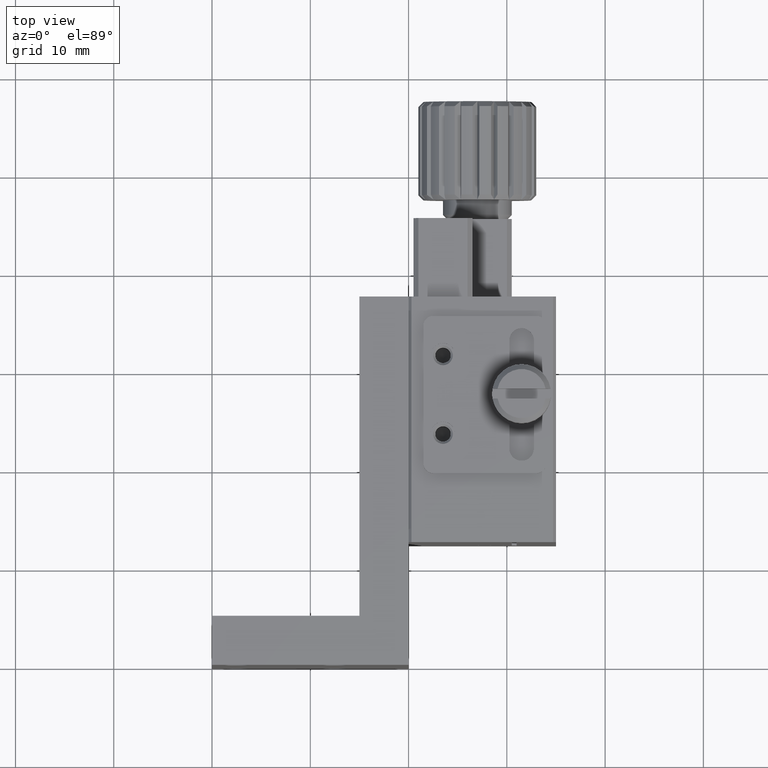
[diagram: clean part render]
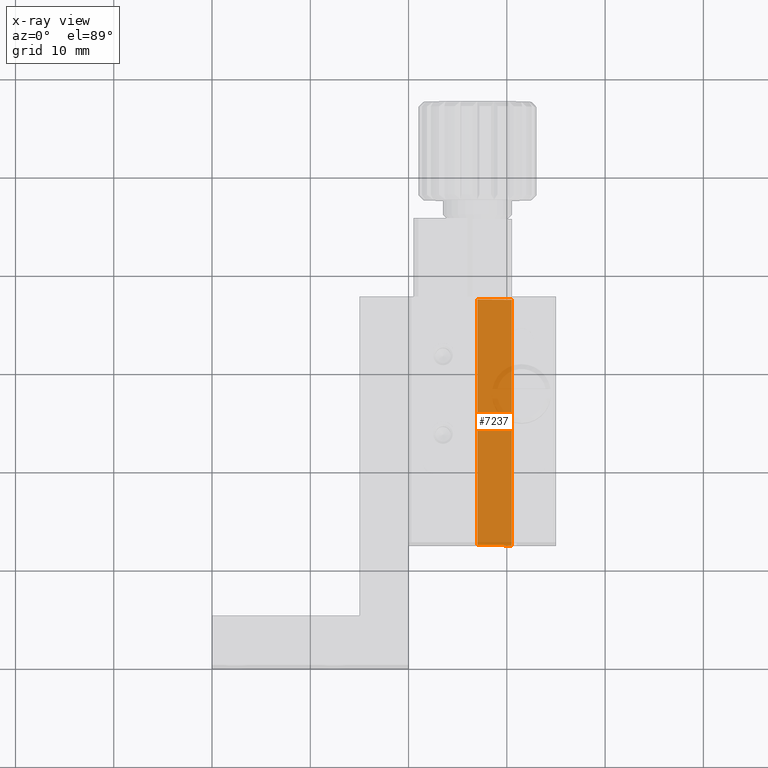
[diagram: x-ray — body ghosted, one internal face saturated and labeled with its STEP entity id]
A machine part, top view, then the same camera in x-ray: the body is ghosted and one INTERNAL B-rep face — a face not visible from any outside direction — is saturated and labeled: STEP entity #7237.
In plain terms, the highlighted planar face has unit normal (0.5001, 0, 0.866).
Its self-contained STEP definition (entity closure, byte-faithful):
#200 = EDGE_CURVE ( 'NONE', #3642, #5220, #1398, .T. ) ;
#208 = LINE ( 'NONE', #4308, #532 ) ;
#306 = VECTOR ( 'NONE', #6802, 999.9999999999998863 ) ;
#314 = FACE_OUTER_BOUND ( 'NONE', #4123, .T. ) ;
#473 = CARTESIAN_POINT ( 'NONE',  ( 10.49999999999999645, 37.50000000000000000, -20.02100000000000080 ) ) ;
#483 = DIRECTION ( 'NONE',  ( -0.8659960399471563486, 0.000000000000000000, 0.5000508562094891918 ) ) ;
#532 = VECTOR ( 'NONE', #5656, 1000.000000000000000 ) ;
#787 = VECTOR ( 'NONE', #6407, 1000.000000000000000 ) ;
#1095 = CARTESIAN_POINT ( 'NONE',  ( 6.999999999999998224, 12.49999999999999645, -18.00000000000000000 ) ) ;
#1101 = LINE ( 'NONE', #4458, #6319 ) ;
#1135 = PLANE ( 'NONE',  #4313 ) ;
#1274 = CARTESIAN_POINT ( 'NONE',  ( 6.999999999999998224, 37.50000000000000000, -18.00000000000000000 ) ) ;
#1398 = LINE ( 'NONE', #1439, #306 ) ;
#1439 = CARTESIAN_POINT ( 'NONE',  ( 6.999999999999998224, 12.49999999999999645, -18.00000000000000000 ) ) ;
#1760 = ORIENTED_EDGE ( 'NONE', *, *, #2074, .F. ) ;
#2074 = EDGE_CURVE ( 'NONE', #8552, #2153, #1101, .T. ) ;
#2153 = VERTEX_POINT ( 'NONE', #1274 ) ;
#2354 = CARTESIAN_POINT ( 'NONE',  ( 10.49999999999999645, 12.49999999999999645, -20.02100000000000080 ) ) ;
#2441 = LINE ( 'NONE', #6358, #787 ) ;
#3424 = ORIENTED_EDGE ( 'NONE', *, *, #5553, .T. ) ;
#3456 = VECTOR ( 'NONE', #8341, 1000.000000000000000 ) ;
#3503 = ORIENTED_EDGE ( 'NONE', *, *, #6236, .F. ) ;
#3638 = VERTEX_POINT ( 'NONE', #473 ) ;
#3642 = VERTEX_POINT ( 'NONE', #5717 ) ;
#3651 = CARTESIAN_POINT ( 'NONE',  ( 7.865907966353279157, 37.50000000000000000, -18.49999999999999645 ) ) ;
#4123 = EDGE_LOOP ( 'NONE', ( #3503, #4759, #5230, #3424, #1760 ) ) ;
#4308 = CARTESIAN_POINT ( 'NONE',  ( 6.999999999999998224, 37.50000000000000000, -18.00000000000000000 ) ) ;
#4313 = AXIS2_PLACEMENT_3D ( 'NONE', #1095, #5069, #7733 ) ;
#4458 = CARTESIAN_POINT ( 'NONE',  ( 6.999999999999998224, 37.50000000000000000, -18.00000000000000000 ) ) ;
#4724 = EDGE_CURVE ( 'NONE', #3638, #5220, #2441, .T. ) ;
#4759 = ORIENTED_EDGE ( 'NONE', *, *, #4724, .T. ) ;
#5069 = DIRECTION ( 'NONE',  ( 0.5000508562094891918, 0.000000000000000000, 0.8659960399471563486 ) ) ;
#5220 = VERTEX_POINT ( 'NONE', #2354 ) ;
#5230 = ORIENTED_EDGE ( 'NONE', *, *, #200, .F. ) ;
#5553 = EDGE_CURVE ( 'NONE', #3642, #2153, #7113, .T. ) ;
#5656 = DIRECTION ( 'NONE',  ( -0.8659960399471563486, 0.000000000000000000, 0.5000508562094891918 ) ) ;
#5689 = CARTESIAN_POINT ( 'NONE',  ( 6.999999999999998224, 12.49999999999999645, -18.00000000000000000 ) ) ;
#5717 = CARTESIAN_POINT ( 'NONE',  ( 6.999999999999997335, 12.49999999999999645, -18.00000000000000000 ) ) ;
#6236 = EDGE_CURVE ( 'NONE', #3638, #8552, #208, .T. ) ;
#6319 = VECTOR ( 'NONE', #483, 1000.000000000000000 ) ;
#6358 = CARTESIAN_POINT ( 'NONE',  ( 10.49999999999999822, 12.49999999999999645, -20.02099999999999724 ) ) ;
#6407 = DIRECTION ( 'NONE',  ( 0.000000000000000000, -1.000000000000000000, 0.000000000000000000 ) ) ;
#6802 = DIRECTION ( 'NONE',  ( 0.8659960399471576808, 0.000000000000000000, -0.5000508562094869713 ) ) ;
#7113 = LINE ( 'NONE', #5689, #3456 ) ;
#7237 = ADVANCED_FACE ( 'NONE', ( #314 ), #1135, .F. ) ;
#7733 = DIRECTION ( 'NONE',  ( -0.8659960399471563486, 0.000000000000000000, 0.5000508562094891918 ) ) ;
#8341 = DIRECTION ( 'NONE',  ( -0.000000000000000000, 1.000000000000000000, -0.000000000000000000 ) ) ;
#8552 = VERTEX_POINT ( 'NONE', #3651 ) ;